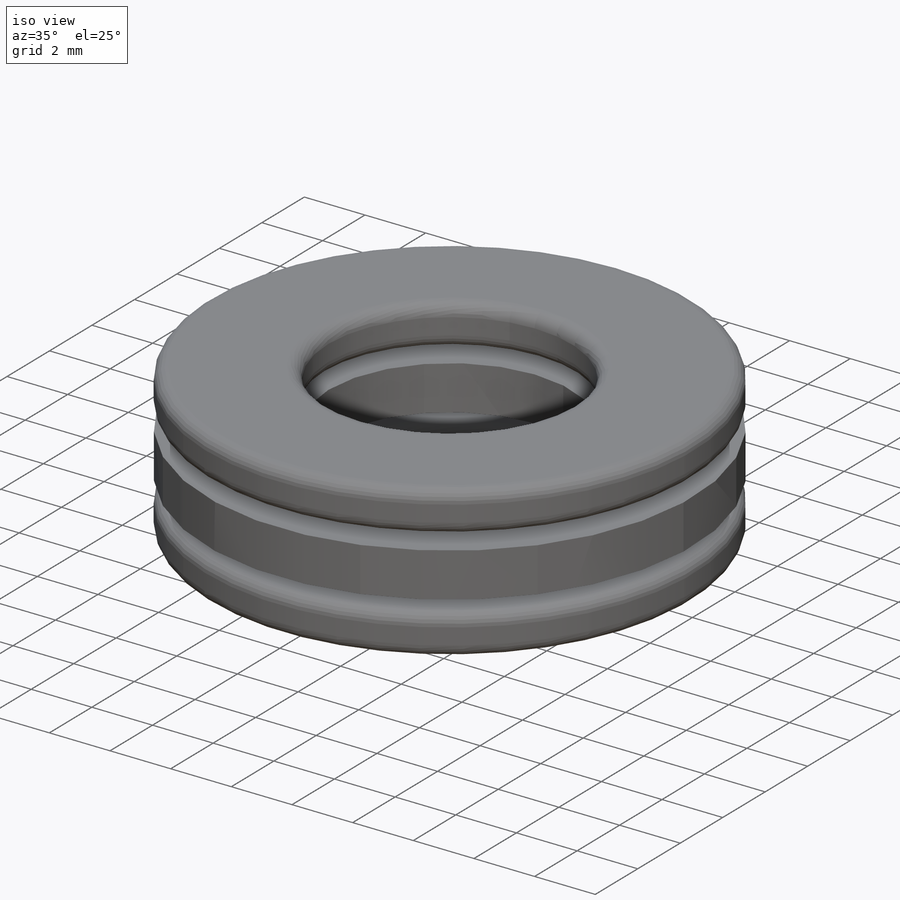
[diagram: iso view]
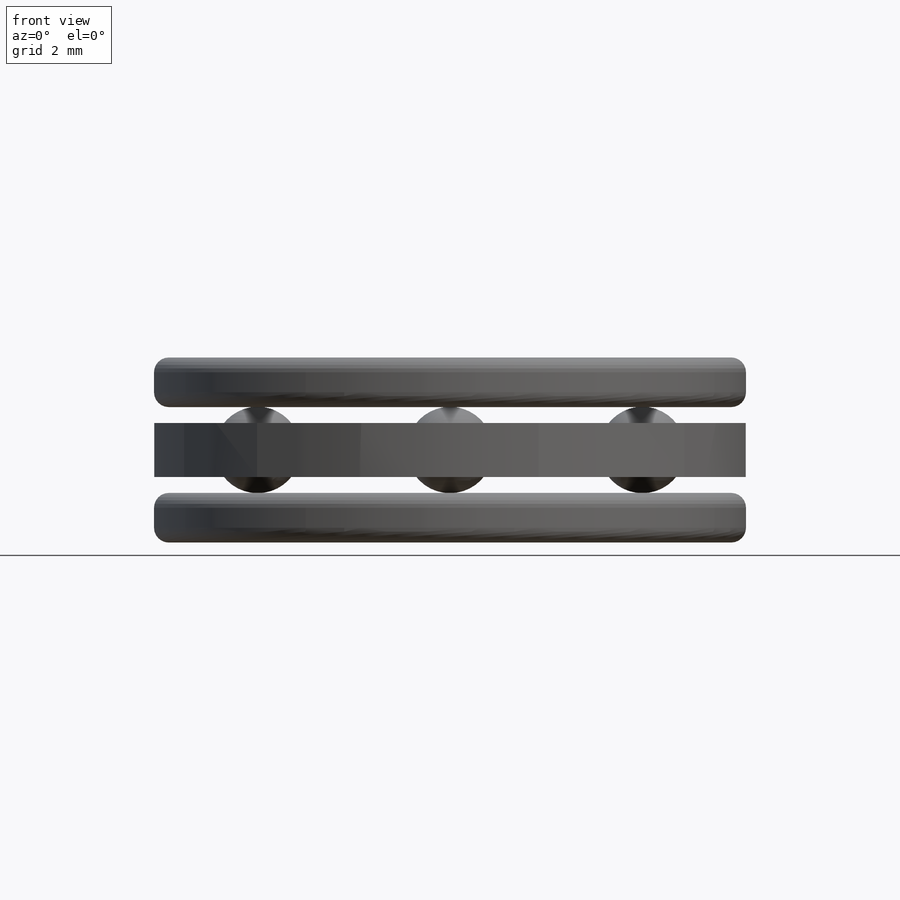
[diagram: front view]
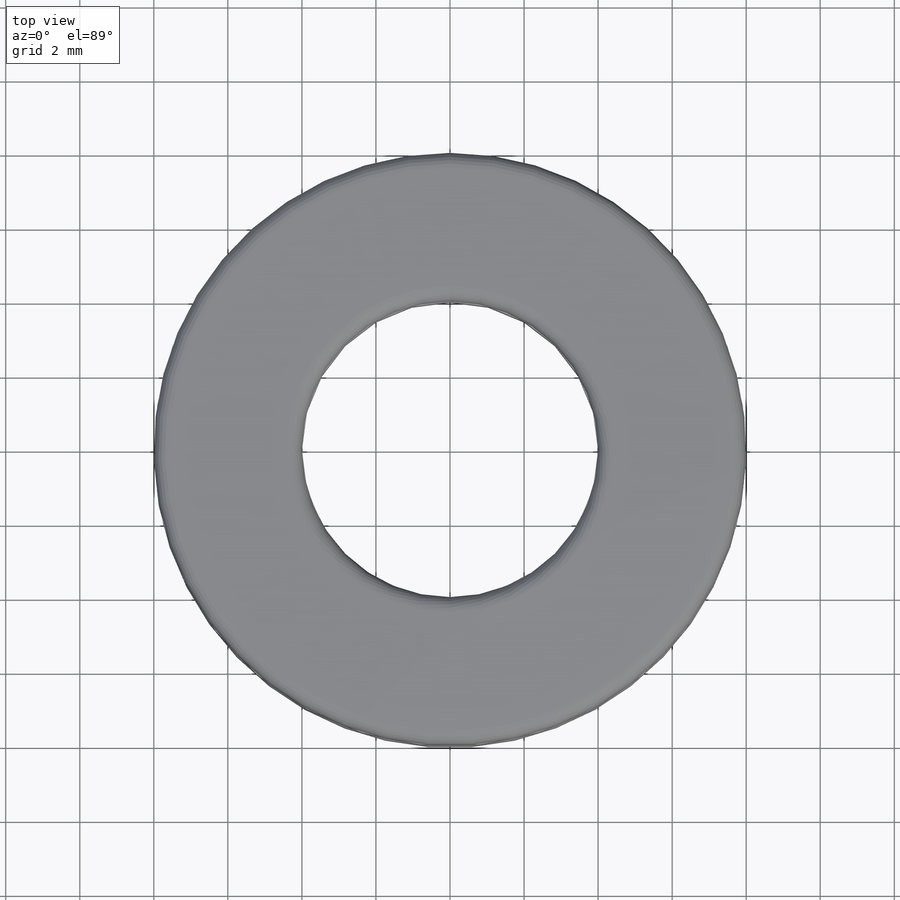
[diagram: top view]
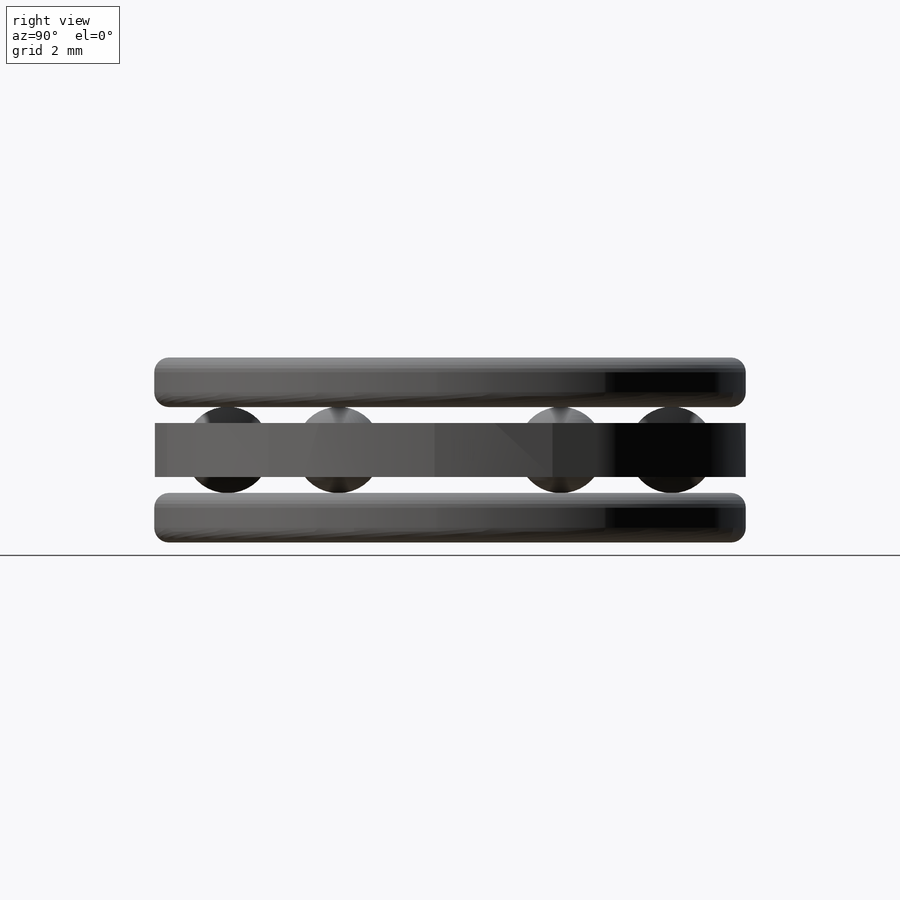
[diagram: right view]
SOLIDWORKS PART (.sldprt)
format: sldprt  version: not decoded by parser v0  size: 542,720 bytes
history: native  units: mm
features: sketch x4, revolve x3, pattern_circular x2, material x1, cut_revolve x1 (+13 scaffold rows collapsed)
feature tree (24):
  scaffold x13  (default folders/planes/origin — collapsed)
  material  "Alloy Steel"
  sketch  "Sketch1"  dims[OD=16.0mm Shaft Dia=8.0mm Th=7.0mm D1=~2.333333mm D2=~1.458333mm D3=~2.333333mm]
  revolve  "Revolve1"  Angle=360deg
  sketch  "Sketch3"
  cut_revolve  "Cut-Revolve1"  Angle=360deg
  sketch  "Sketch2"
  revolve  "Revolve2"  Angle=360deg
  pattern_circular  "CirPattern1"  Count=6 Angle=60deg Balls=6
  pattern_circular  "CirPattern2"  Count=6 Angle=60deg
  sketch  "Sketch4"  dims[c1.R=0.2mm c1.r=0.4mm c1.D5=0.2mm c1.Ht=5.0mm c1.D1=9.2mm c1.D3=8.0mm c1.dia2=8.2mm c2.D5=16.0mm c2.dia1=16.0mm c2.D1=~1.341667mm]
  revolve  "Revolve3"  Angle=360deg
decode coverage: 8 of 10 modeling features carry decoded parameters
note: ~ marks probable driven/reference dimensions
note: suppression state not decoded; provenance and decode notes live in map.json
